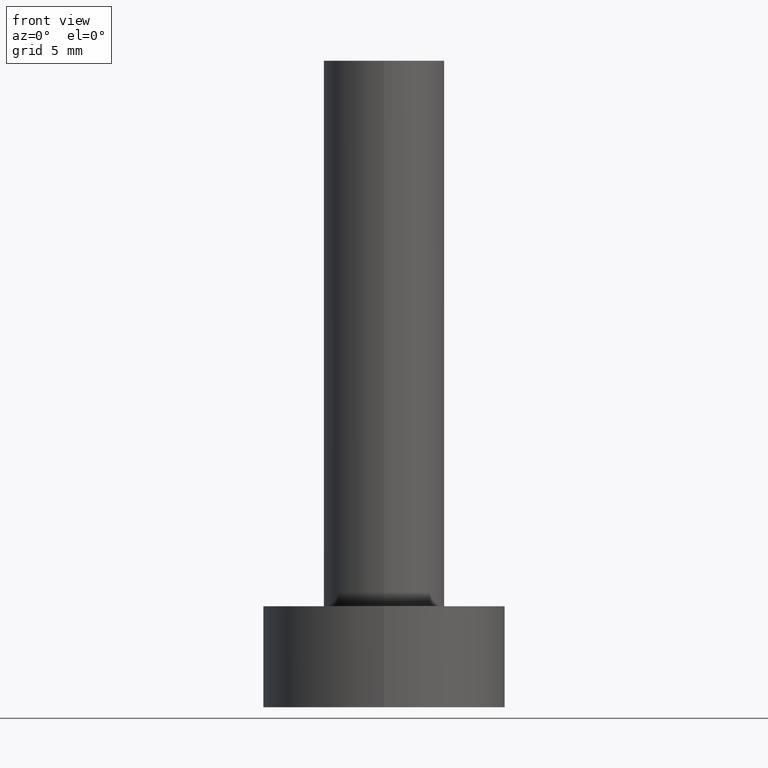
[diagram: clean part render]
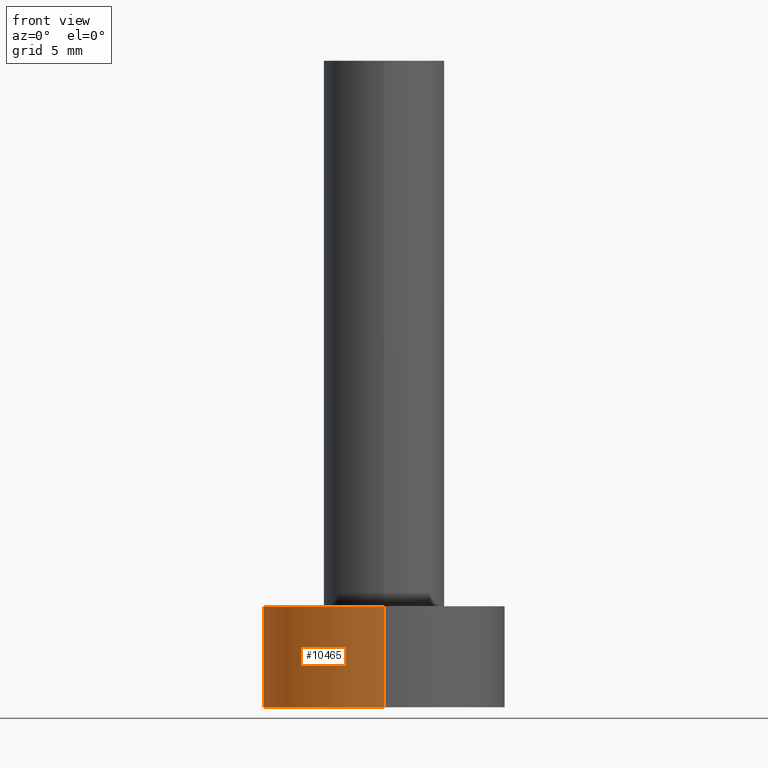
[diagram: same view with one face highlighted and labeled with its STEP entity id]
A machine part, front view. The second image highlights one B-rep face of the part: STEP entity #10465.
In plain terms, the highlighted cylindrical surface (partial cylindrical patch) has radius 6 mm, axis along (-0, 0, -1).
Its self-contained STEP definition (entity closure, byte-faithful):
#314 = CARTESIAN_POINT ( 'NONE',  ( 0.0000000000000000000, 6.000000000000000000, 7.347880794884119700E-016 ) ) ;
#580 = EDGE_CURVE ( 'NONE', #9169, #11498, #12211, .T. ) ;
#832 = VECTOR ( 'NONE', #8794, 1000.000000000000000 ) ;
#873 = DIRECTION ( 'NONE',  ( -0.0000000000000000000, 1.224646799147353200E-016, -1.000000000000000000 ) ) ;
#1144 = EDGE_CURVE ( 'NONE', #11498, #10297, #5575, .T. ) ;
#2133 = VECTOR ( 'NONE', #9237, 1000.000000000000000 ) ;
#2519 = CYLINDRICAL_SURFACE ( 'NONE', #12229, 6.000000000000000000 ) ;
#2915 = VERTEX_POINT ( 'NONE', #6115 ) ;
#3343 = LINE ( 'NONE', #314, #832 ) ;
#4365 = AXIS2_PLACEMENT_3D ( 'NONE', #9310, #11050, #12083 ) ;
#4382 = ORIENTED_EDGE ( 'NONE', *, *, #8322, .T. ) ;
#5040 = EDGE_LOOP ( 'NONE', ( #8367, #8651, #4382, #11535 ) ) ;
#5575 = CIRCLE ( 'NONE', #4365, 6.000000000000000000 ) ;
#6115 = CARTESIAN_POINT ( 'NONE',  ( 0.0000000000000000000, 6.000000000000000000, 5.000000000000002700 ) ) ;
#6354 = DIRECTION ( 'NONE',  ( -0.0000000000000000000, 1.224646799147353200E-016, -1.000000000000000000 ) ) ;
#6866 = CARTESIAN_POINT ( 'NONE',  ( 7.347880794884119700E-016, -6.000000000000000000, -1.469576158976823900E-015 ) ) ;
#7081 = CARTESIAN_POINT ( 'NONE',  ( 7.347880794884119700E-016, -6.000000000000000000, -7.347880794884119700E-016 ) ) ;
#7173 = CARTESIAN_POINT ( 'NONE',  ( 7.347880794884121700E-016, -6.000000000000001800, 5.000000000000000900 ) ) ;
#7248 = AXIS2_PLACEMENT_3D ( 'NONE', #8400, #873, #10183 ) ;
#7864 = CARTESIAN_POINT ( 'NONE',  ( 0.0000000000000000000, 6.000000000000000000, 0.0000000000000000000 ) ) ;
#8237 = DIRECTION ( 'NONE',  ( 0.0000000000000000000, 1.000000000000000000, 1.224646799147353200E-016 ) ) ;
#8322 = EDGE_CURVE ( 'NONE', #2915, #10297, #3343, .T. ) ;
#8367 = ORIENTED_EDGE ( 'NONE', *, *, #580, .F. ) ;
#8400 = CARTESIAN_POINT ( 'NONE',  ( 0.0000000000000000000, -6.123233995736768300E-016, 5.000000000000001800 ) ) ;
#8651 = ORIENTED_EDGE ( 'NONE', *, *, #9018, .T. ) ;
#8794 = DIRECTION ( 'NONE',  ( -0.0000000000000000000, 1.224646799147353200E-016, -1.000000000000000000 ) ) ;
#9018 = EDGE_CURVE ( 'NONE', #9169, #2915, #12063, .T. ) ;
#9169 = VERTEX_POINT ( 'NONE', #7173 ) ;
#9237 = DIRECTION ( 'NONE',  ( -0.0000000000000000000, 1.224646799147353200E-016, -1.000000000000000000 ) ) ;
#9310 = CARTESIAN_POINT ( 'NONE',  ( 0.0000000000000000000, 8.998558695971145600E-032, -7.347880794884119700E-016 ) ) ;
#10128 = CARTESIAN_POINT ( 'NONE',  ( 0.0000000000000000000, 0.0000000000000000000, 0.0000000000000000000 ) ) ;
#10183 = DIRECTION ( 'NONE',  ( 0.0000000000000000000, 1.000000000000000000, 1.445602896647338900E-016 ) ) ;
#10297 = VERTEX_POINT ( 'NONE', #7864 ) ;
#10465 = ADVANCED_FACE ( 'NONE', ( #10642 ), #2519, .T. ) ;
#10642 = FACE_OUTER_BOUND ( 'NONE', #5040, .T. ) ;
#11050 = DIRECTION ( 'NONE',  ( -0.0000000000000000000, 1.224646799147353200E-016, -1.000000000000000000 ) ) ;
#11498 = VERTEX_POINT ( 'NONE', #6866 ) ;
#11535 = ORIENTED_EDGE ( 'NONE', *, *, #1144, .F. ) ;
#12063 = CIRCLE ( 'NONE', #7248, 6.000000000000000900 ) ;
#12083 = DIRECTION ( 'NONE',  ( 0.0000000000000000000, 1.000000000000000000, 1.224646799147353200E-016 ) ) ;
#12211 = LINE ( 'NONE', #7081, #2133 ) ;
#12229 = AXIS2_PLACEMENT_3D ( 'NONE', #10128, #6354, #8237 ) ;